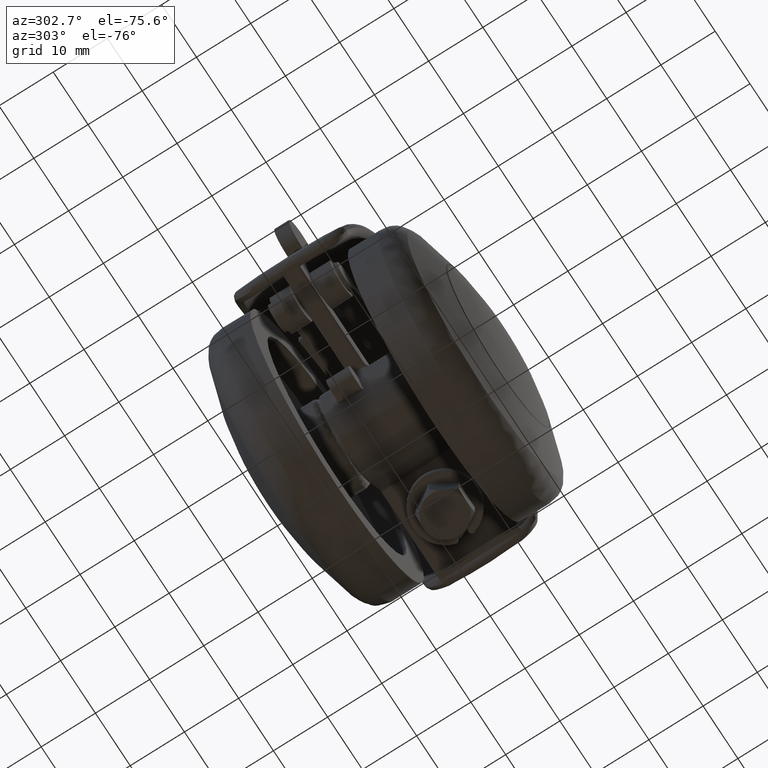
[diagram: clean part render]
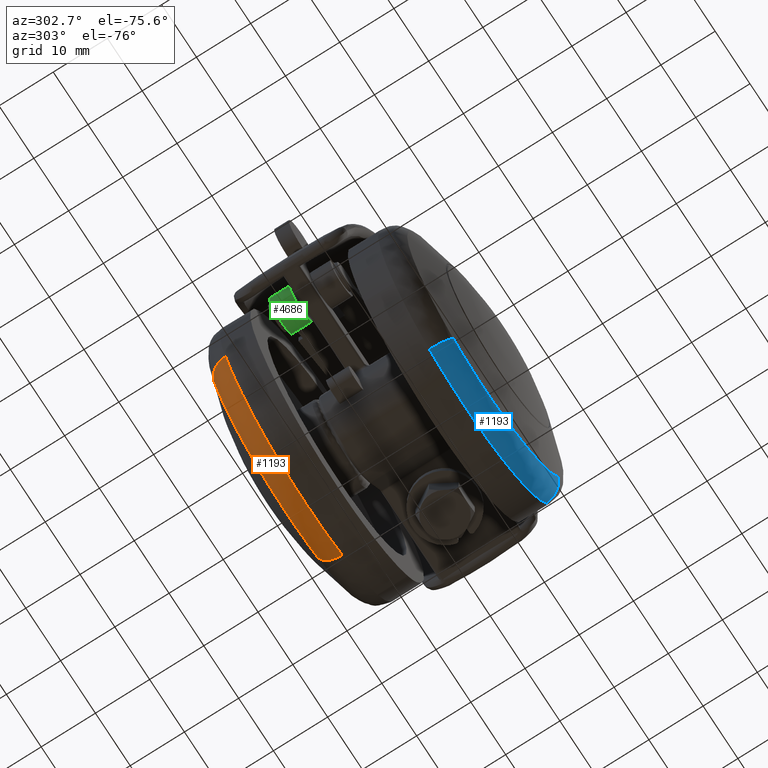
[diagram: same view with three faces highlighted in distinct colors, each labeled with its STEP entity id]
A machine part, auxiliary view with three faces highlighted in distinct colors.
Their STEP definitions:

[orange] entity #1193 — the highlighted face is a freeform B-spline surface patch.
#476=CARTESIAN_POINT('',(-10.231622853727570,-14.593997068428530,-22.810390040047089));
#477=VERTEX_POINT('',#476);
#569=CARTESIAN_POINT('',(23.358223561411961,-14.593997068430790,-8.910296967840019));
#570=VERTEX_POINT('',#569);
#586=CARTESIAN_POINT('',(0.0,-14.593997068399940,-25.0));
#587=VERTEX_POINT('',#586);
#588=CARTESIAN_POINT('',(23.358223561411954,-14.593997068430786,-8.910296967840019));
#589=CARTESIAN_POINT('',(17.220597908324997,-14.593997068399940,-25.000000000000011));
#590=CARTESIAN_POINT('',(0.0,-14.593997068399940,-25.0));
#598=(BOUNDED_CURVE()B_SPLINE_CURVE(2,(#588,#589,#590),.UNSPECIFIED.,.F.,.U.)B_SPLINE_CURVE_WITH_KNOTS((3,3),(0.310525011914154,0.500000000000000),.UNSPECIFIED.)CURVE()GEOMETRIC_REPRESENTATION_ITEM()RATIONAL_B_SPLINE_CURVE((0.892515443905773,0.778016243419585,1.0))REPRESENTATION_ITEM(''));
#599=EDGE_CURVE('',#570,#587,#598,.T.);
#601=CARTESIAN_POINT('',(0.0,-14.593997068399940,-25.0));
#602=CARTESIAN_POINT('',(-5.350104258278274,-14.593997068399945,-25.000000000000011));
#603=CARTESIAN_POINT('',(-10.231622853727574,-14.593997068428527,-22.810390040047093));
#611=(BOUNDED_CURVE()B_SPLINE_CURVE(2,(#601,#602,#603),.UNSPECIFIED.,.F.,.U.)B_SPLINE_CURVE_WITH_KNOTS((3,3),(0.500000000000000,0.569501085436818),.UNSPECIFIED.)CURVE()GEOMETRIC_REPRESENTATION_ITEM()RATIONAL_B_SPLINE_CURVE((1.0,0.918574413501526,0.882422160154840))REPRESENTATION_ITEM(''));
#612=EDGE_CURVE('',#587,#477,#611,.T.);
#1070=CARTESIAN_POINT('',(-9.183185829302595,-18.326483563060339,-20.473003505578621));
#1071=VERTEX_POINT('',#1070);
#1072=CARTESIAN_POINT('',(-9.183185829302595,-18.326483563060343,-20.473003505578617));
#1073=CARTESIAN_POINT('',(-10.231622853711102,-17.339358833673902,-22.810390040011459));
#1074=CARTESIAN_POINT('',(-10.231622853727572,-14.593997068428523,-22.810390040047093));
#1082=(BOUNDED_CURVE()B_SPLINE_CURVE(2,(#1072,#1073,#1074),.UNSPECIFIED.,.F.,.U.)B_SPLINE_CURVE_WITH_KNOTS((3,3),(-1.674349435299890,-0.336518399897634),.UNSPECIFIED.)CURVE()GEOMETRIC_REPRESENTATION_ITEM()RATIONAL_B_SPLINE_CURVE((0.883192897697689,0.727144453720862,0.880678016416272))REPRESENTATION_ITEM(''));
#1083=EDGE_CURVE('',#1071,#477,#1082,.T.);
#1102=CARTESIAN_POINT('',(20.964700385383590,-18.326483563089191,-7.997256546008503));
#1103=VERTEX_POINT('',#1102);
#1119=CARTESIAN_POINT('',(20.964700385383590,-18.326483563089191,-7.997256546008503));
#1120=CARTESIAN_POINT('',(23.358223561375727,-17.339358833793128,-8.910296967816182));
#1121=CARTESIAN_POINT('',(23.358223561411961,-14.593997068430793,-8.910296967840019));
#1129=(BOUNDED_CURVE()B_SPLINE_CURVE(2,(#1119,#1120,#1121),.UNSPECIFIED.,.F.,.U.)B_SPLINE_CURVE_WITH_KNOTS((3,3),(-1.674349435347378,-0.336518399898965),.UNSPECIFIED.)CURVE()GEOMETRIC_REPRESENTATION_ITEM()RATIONAL_B_SPLINE_CURVE((0.903516784238372,0.743877379678044,0.900944030919920))REPRESENTATION_ITEM(''));
#1130=EDGE_CURVE('',#1103,#570,#1129,.T.);
#1136=CARTESIAN_POINT('',(20.767607842402949,-18.401061501416720,-7.922073042101664));
#1137=CARTESIAN_POINT('',(12.845534800301284,-18.401061501416727,-28.689680884504593));
#1138=CARTESIAN_POINT('',(-7.922073042101659,-18.401061501416720,-20.767607842402949));
#1139=CARTESIAN_POINT('',(-8.516432482638061,-18.401061501416716,-20.540881734277086));
#1140=CARTESIAN_POINT('',(-9.096852092142793,-18.401061501416720,-20.280533986902508));
#1141=CARTESIAN_POINT('',(23.514173028038961,-17.453407258791170,-8.969785912097017));
#1142=CARTESIAN_POINT('',(14.544387115941941,-17.453407258791167,-32.483958940135977));
#1143=CARTESIAN_POINT('',(-8.969785912097011,-17.453407258791170,-23.514173028038961));
#1144=CARTESIAN_POINT('',(-9.642750792389377,-17.453407258791156,-23.257461856636734));
#1145=CARTESIAN_POINT('',(-10.299932266073341,-17.453407258791174,-22.962682504788287));
#1146=CARTESIAN_POINT('',(23.352342244603445,-14.369680448133055,-8.908053463344830));
#1147=CARTESIAN_POINT('',(14.444288781258622,-14.369680448133053,-32.260395707948284));
#1148=CARTESIAN_POINT('',(-8.908053463344828,-14.369680448133055,-23.352342244603445));
#1149=CARTESIAN_POINT('',(-9.576386820611802,-14.369680448133055,-23.097397827657577));
#1150=CARTESIAN_POINT('',(-10.229045396866255,-14.369680448133057,-22.804647225593079));
#1158=(BOUNDED_SURFACE()B_SPLINE_SURFACE(2,2,((#1136,#1141,#1146),(#1137,#1142,#1147),(#1138,#1143,#1148),(#1139,#1144,#1149),(#1140,#1145,#1150)),.UNSPECIFIED.,.F.,.F.,.U.)B_SPLINE_SURFACE_WITH_KNOTS((3,2,3),(3,3),(0.0,41.410926843217638,43.067362337244852),(0.0,5.458281137225143),.UNSPECIFIED.)GEOMETRIC_REPRESENTATION_ITEM()RATIONAL_B_SPLINE_SURFACE(((0.920254974047563,0.727267710697979,0.917425179410290),(0.650718532569682,0.514255929972558,0.648717565592301),(0.920254974047563,0.727267710697979,0.917425179410290),(0.909473526670447,0.718747247594717,0.906676885107953),(0.899554594260942,0.710908420889656,0.896788453529772)))REPRESENTATION_ITEM('')SURFACE());
#1159=ORIENTED_EDGE('',*,*,#612,.F.);
#1160=ORIENTED_EDGE('',*,*,#599,.F.);
#1161=ORIENTED_EDGE('',*,*,#1130,.F.);
#1162=CARTESIAN_POINT('',(0.0,-18.326483564039400,-22.438243567644001));
#1163=VERTEX_POINT('',#1162);
#1164=CARTESIAN_POINT('',(0.0,-18.326483564039400,-22.438243567644001));
#1165=CARTESIAN_POINT('',(15.455998809657956,-18.326483564039400,-22.438243567644001));
#1166=CARTESIAN_POINT('',(20.964700385383587,-18.326483563089191,-7.997256546008503));
#1174=(BOUNDED_CURVE()B_SPLINE_CURVE(2,(#1164,#1165,#1166),.UNSPECIFIED.,.F.,.U.)B_SPLINE_CURVE_WITH_KNOTS((3,3),(0.500000000000000,0.689474988083553),.UNSPECIFIED.)CURVE()GEOMETRIC_REPRESENTATION_ITEM()RATIONAL_B_SPLINE_CURVE((1.0,0.778016243422270,0.892515443903003))REPRESENTATION_ITEM(''));
#1175=EDGE_CURVE('',#1163,#1103,#1174,.T.);
#1176=ORIENTED_EDGE('',*,*,#1175,.F.);
#1177=CARTESIAN_POINT('',(-9.183185829302595,-18.326483563060343,-20.473003505578617));
#1178=CARTESIAN_POINT('',(-4.801877699406469,-18.326483564039400,-22.438243567643998));
#1179=CARTESIAN_POINT('',(0.0,-18.326483564039400,-22.438243567644001));
#1187=(BOUNDED_CURVE()B_SPLINE_CURVE(2,(#1177,#1178,#1179),.UNSPECIFIED.,.F.,.U.)B_SPLINE_CURVE_WITH_KNOTS((3,3),(0.430498914549554,0.500000000000000),.UNSPECIFIED.)CURVE()GEOMETRIC_REPRESENTATION_ITEM()RATIONAL_B_SPLINE_CURVE((0.882422160140663,0.918574413485561,1.0))REPRESENTATION_ITEM(''));
#1188=EDGE_CURVE('',#1071,#1163,#1187,.T.);
#1189=ORIENTED_EDGE('',*,*,#1188,.F.);
#1190=ORIENTED_EDGE('',*,*,#1083,.T.);
#1191=EDGE_LOOP('',(#1159,#1160,#1161,#1176,#1189,#1190));
#1192=FACE_OUTER_BOUND('',#1191,.T.);
#1193=ADVANCED_FACE('',(#1192),#1158,.T.);

[blue] entity #1193 — the highlighted face is a freeform B-spline surface patch.
#476=CARTESIAN_POINT('',(-10.231622853727570,-14.593997068428530,-22.810390040047089));
#477=VERTEX_POINT('',#476);
#569=CARTESIAN_POINT('',(23.358223561411961,-14.593997068430790,-8.910296967840019));
#570=VERTEX_POINT('',#569);
#586=CARTESIAN_POINT('',(0.0,-14.593997068399940,-25.0));
#587=VERTEX_POINT('',#586);
#588=CARTESIAN_POINT('',(23.358223561411954,-14.593997068430786,-8.910296967840019));
#589=CARTESIAN_POINT('',(17.220597908324997,-14.593997068399940,-25.000000000000011));
#590=CARTESIAN_POINT('',(0.0,-14.593997068399940,-25.0));
#598=(BOUNDED_CURVE()B_SPLINE_CURVE(2,(#588,#589,#590),.UNSPECIFIED.,.F.,.U.)B_SPLINE_CURVE_WITH_KNOTS((3,3),(0.310525011914154,0.500000000000000),.UNSPECIFIED.)CURVE()GEOMETRIC_REPRESENTATION_ITEM()RATIONAL_B_SPLINE_CURVE((0.892515443905773,0.778016243419585,1.0))REPRESENTATION_ITEM(''));
#599=EDGE_CURVE('',#570,#587,#598,.T.);
#601=CARTESIAN_POINT('',(0.0,-14.593997068399940,-25.0));
#602=CARTESIAN_POINT('',(-5.350104258278274,-14.593997068399945,-25.000000000000011));
#603=CARTESIAN_POINT('',(-10.231622853727574,-14.593997068428527,-22.810390040047093));
#611=(BOUNDED_CURVE()B_SPLINE_CURVE(2,(#601,#602,#603),.UNSPECIFIED.,.F.,.U.)B_SPLINE_CURVE_WITH_KNOTS((3,3),(0.500000000000000,0.569501085436818),.UNSPECIFIED.)CURVE()GEOMETRIC_REPRESENTATION_ITEM()RATIONAL_B_SPLINE_CURVE((1.0,0.918574413501526,0.882422160154840))REPRESENTATION_ITEM(''));
#612=EDGE_CURVE('',#587,#477,#611,.T.);
#1070=CARTESIAN_POINT('',(-9.183185829302595,-18.326483563060339,-20.473003505578621));
#1071=VERTEX_POINT('',#1070);
#1072=CARTESIAN_POINT('',(-9.183185829302595,-18.326483563060343,-20.473003505578617));
#1073=CARTESIAN_POINT('',(-10.231622853711102,-17.339358833673902,-22.810390040011459));
#1074=CARTESIAN_POINT('',(-10.231622853727572,-14.593997068428523,-22.810390040047093));
#1082=(BOUNDED_CURVE()B_SPLINE_CURVE(2,(#1072,#1073,#1074),.UNSPECIFIED.,.F.,.U.)B_SPLINE_CURVE_WITH_KNOTS((3,3),(-1.674349435299890,-0.336518399897634),.UNSPECIFIED.)CURVE()GEOMETRIC_REPRESENTATION_ITEM()RATIONAL_B_SPLINE_CURVE((0.883192897697689,0.727144453720862,0.880678016416272))REPRESENTATION_ITEM(''));
#1083=EDGE_CURVE('',#1071,#477,#1082,.T.);
#1102=CARTESIAN_POINT('',(20.964700385383590,-18.326483563089191,-7.997256546008503));
#1103=VERTEX_POINT('',#1102);
#1119=CARTESIAN_POINT('',(20.964700385383590,-18.326483563089191,-7.997256546008503));
#1120=CARTESIAN_POINT('',(23.358223561375727,-17.339358833793128,-8.910296967816182));
#1121=CARTESIAN_POINT('',(23.358223561411961,-14.593997068430793,-8.910296967840019));
#1129=(BOUNDED_CURVE()B_SPLINE_CURVE(2,(#1119,#1120,#1121),.UNSPECIFIED.,.F.,.U.)B_SPLINE_CURVE_WITH_KNOTS((3,3),(-1.674349435347378,-0.336518399898965),.UNSPECIFIED.)CURVE()GEOMETRIC_REPRESENTATION_ITEM()RATIONAL_B_SPLINE_CURVE((0.903516784238372,0.743877379678044,0.900944030919920))REPRESENTATION_ITEM(''));
#1130=EDGE_CURVE('',#1103,#570,#1129,.T.);
#1136=CARTESIAN_POINT('',(20.767607842402949,-18.401061501416720,-7.922073042101664));
#1137=CARTESIAN_POINT('',(12.845534800301284,-18.401061501416727,-28.689680884504593));
#1138=CARTESIAN_POINT('',(-7.922073042101659,-18.401061501416720,-20.767607842402949));
#1139=CARTESIAN_POINT('',(-8.516432482638061,-18.401061501416716,-20.540881734277086));
#1140=CARTESIAN_POINT('',(-9.096852092142793,-18.401061501416720,-20.280533986902508));
#1141=CARTESIAN_POINT('',(23.514173028038961,-17.453407258791170,-8.969785912097017));
#1142=CARTESIAN_POINT('',(14.544387115941941,-17.453407258791167,-32.483958940135977));
#1143=CARTESIAN_POINT('',(-8.969785912097011,-17.453407258791170,-23.514173028038961));
#1144=CARTESIAN_POINT('',(-9.642750792389377,-17.453407258791156,-23.257461856636734));
#1145=CARTESIAN_POINT('',(-10.299932266073341,-17.453407258791174,-22.962682504788287));
#1146=CARTESIAN_POINT('',(23.352342244603445,-14.369680448133055,-8.908053463344830));
#1147=CARTESIAN_POINT('',(14.444288781258622,-14.369680448133053,-32.260395707948284));
#1148=CARTESIAN_POINT('',(-8.908053463344828,-14.369680448133055,-23.352342244603445));
#1149=CARTESIAN_POINT('',(-9.576386820611802,-14.369680448133055,-23.097397827657577));
#1150=CARTESIAN_POINT('',(-10.229045396866255,-14.369680448133057,-22.804647225593079));
#1158=(BOUNDED_SURFACE()B_SPLINE_SURFACE(2,2,((#1136,#1141,#1146),(#1137,#1142,#1147),(#1138,#1143,#1148),(#1139,#1144,#1149),(#1140,#1145,#1150)),.UNSPECIFIED.,.F.,.F.,.U.)B_SPLINE_SURFACE_WITH_KNOTS((3,2,3),(3,3),(0.0,41.410926843217638,43.067362337244852),(0.0,5.458281137225143),.UNSPECIFIED.)GEOMETRIC_REPRESENTATION_ITEM()RATIONAL_B_SPLINE_SURFACE(((0.920254974047563,0.727267710697979,0.917425179410290),(0.650718532569682,0.514255929972558,0.648717565592301),(0.920254974047563,0.727267710697979,0.917425179410290),(0.909473526670447,0.718747247594717,0.906676885107953),(0.899554594260942,0.710908420889656,0.896788453529772)))REPRESENTATION_ITEM('')SURFACE());
#1159=ORIENTED_EDGE('',*,*,#612,.F.);
#1160=ORIENTED_EDGE('',*,*,#599,.F.);
#1161=ORIENTED_EDGE('',*,*,#1130,.F.);
#1162=CARTESIAN_POINT('',(0.0,-18.326483564039400,-22.438243567644001));
#1163=VERTEX_POINT('',#1162);
#1164=CARTESIAN_POINT('',(0.0,-18.326483564039400,-22.438243567644001));
#1165=CARTESIAN_POINT('',(15.455998809657956,-18.326483564039400,-22.438243567644001));
#1166=CARTESIAN_POINT('',(20.964700385383587,-18.326483563089191,-7.997256546008503));
#1174=(BOUNDED_CURVE()B_SPLINE_CURVE(2,(#1164,#1165,#1166),.UNSPECIFIED.,.F.,.U.)B_SPLINE_CURVE_WITH_KNOTS((3,3),(0.500000000000000,0.689474988083553),.UNSPECIFIED.)CURVE()GEOMETRIC_REPRESENTATION_ITEM()RATIONAL_B_SPLINE_CURVE((1.0,0.778016243422270,0.892515443903003))REPRESENTATION_ITEM(''));
#1175=EDGE_CURVE('',#1163,#1103,#1174,.T.);
#1176=ORIENTED_EDGE('',*,*,#1175,.F.);
#1177=CARTESIAN_POINT('',(-9.183185829302595,-18.326483563060343,-20.473003505578617));
#1178=CARTESIAN_POINT('',(-4.801877699406469,-18.326483564039400,-22.438243567643998));
#1179=CARTESIAN_POINT('',(0.0,-18.326483564039400,-22.438243567644001));
#1187=(BOUNDED_CURVE()B_SPLINE_CURVE(2,(#1177,#1178,#1179),.UNSPECIFIED.,.F.,.U.)B_SPLINE_CURVE_WITH_KNOTS((3,3),(0.430498914549554,0.500000000000000),.UNSPECIFIED.)CURVE()GEOMETRIC_REPRESENTATION_ITEM()RATIONAL_B_SPLINE_CURVE((0.882422160140663,0.918574413485561,1.0))REPRESENTATION_ITEM(''));
#1188=EDGE_CURVE('',#1071,#1163,#1187,.T.);
#1189=ORIENTED_EDGE('',*,*,#1188,.F.);
#1190=ORIENTED_EDGE('',*,*,#1083,.T.);
#1191=EDGE_LOOP('',(#1159,#1160,#1161,#1176,#1189,#1190));
#1192=FACE_OUTER_BOUND('',#1191,.T.);
#1193=ADVANCED_FACE('',(#1192),#1158,.T.);

[green] entity #4686 — the highlighted face is a freeform B-spline surface patch.
#4495=CARTESIAN_POINT('',(-20.886645920919801,1.900000000000000,6.869426943966571));
#4496=VERTEX_POINT('',#4495);
#4510=CARTESIAN_POINT('',(-23.271689609477150,1.900000000000000,6.374899015954280));
#4511=VERTEX_POINT('',#4510);
#4517=CARTESIAN_POINT('',(-23.271689609477150,1.900000000000000,6.374899015954282));
#4518=CARTESIAN_POINT('',(-25.550406773934593,1.899999999999999,4.873989091057305));
#4519=CARTESIAN_POINT('',(-24.504334299940851,1.900000000000000,2.353867090558159));
#4520=CARTESIAN_POINT('',(-23.458261825947119,1.899999999999999,-0.166254909940987));
#4521=CARTESIAN_POINT('',(-20.786485636109479,1.900000000000000,0.387725694109159));
#4522=CARTESIAN_POINT('',(-18.114709446271821,1.899999999999999,0.941706298159304));
#4523=CARTESIAN_POINT('',(-18.156868930181499,1.900000000000000,3.669985077199975));
#4524=CARTESIAN_POINT('',(-18.199028414091167,1.899999999999999,6.398263856240645));
#4525=CARTESIAN_POINT('',(-20.886645920919801,1.900000000000000,6.869426943966576));
#4533=(BOUNDED_CURVE()B_SPLINE_CURVE(2,(#4517,#4518,#4519,#4520,#4521,#4522,#4523,#4524,#4525),.UNSPECIFIED.,.F.,.U.)B_SPLINE_CURVE_WITH_KNOTS((3,2,2,2,3),(0.0,0.250000000000000,0.500000000000000,0.750000000000000,1.0),.UNSPECIFIED.)CURVE()GEOMETRIC_REPRESENTATION_ITEM()RATIONAL_B_SPLINE_CURVE((1.0,0.770672987149878,1.0,0.770672987149878,1.0,0.770672987149878,1.0,0.770672987149878,1.0))REPRESENTATION_ITEM(''));
#4534=EDGE_CURVE('',#4511,#4496,#4533,.T.);
#4624=CARTESIAN_POINT('',(-21.028970034769060,5.692500000000001,6.891188850228657));
#4625=CARTESIAN_POINT('',(-21.028970034769060,1.805187499999999,6.891188850228657));
#4626=CARTESIAN_POINT('',(-18.258855156103802,5.692500000000001,6.529279182613390));
#4627=CARTESIAN_POINT('',(-18.258855156103802,1.805187500000000,6.529279182613390));
#4628=CARTESIAN_POINT('',(-18.158600621647121,5.692500000000001,3.737422439004060));
#4629=CARTESIAN_POINT('',(-18.158600621647121,1.805187499999999,3.737422439004060));
#4630=CARTESIAN_POINT('',(-18.058346087190444,5.692500000000001,0.945565695394730));
#4631=CARTESIAN_POINT('',(-18.058346087190444,1.805187500000000,0.945565695394730));
#4632=CARTESIAN_POINT('',(-20.795367424078190,5.692500000000001,0.385896820132581));
#4633=CARTESIAN_POINT('',(-20.795367424078190,1.805187499999999,0.385896820132581));
#4634=CARTESIAN_POINT('',(-23.532388760965947,5.692500000000001,-0.173772055129569));
#4635=CARTESIAN_POINT('',(-23.532388760965947,1.805187500000000,-0.173772055129569));
#4636=CARTESIAN_POINT('',(-24.536120933108450,5.692500000000001,2.433340672606247));
#4637=CARTESIAN_POINT('',(-24.536120933108450,1.805187499999999,2.433340672606247));
#4638=CARTESIAN_POINT('',(-25.539853105250970,5.692500000000001,5.040453400342063));
#4639=CARTESIAN_POINT('',(-25.539853105250970,1.805187500000000,5.040453400342063));
#4640=CARTESIAN_POINT('',(-23.134158952238138,5.692500000000001,6.460717703447610));
#4641=CARTESIAN_POINT('',(-23.134158952238138,1.805187499999999,6.460717703447610));
#4649=(BOUNDED_SURFACE()B_SPLINE_SURFACE(1,2,((#4624,#4626,#4628,#4630,#4632,#4634,#4636,#4638,#4640),(#4625,#4627,#4629,#4631,#4633,#4635,#4637,#4639,#4641)),.UNSPECIFIED.,.F.,.F.,.U.)B_SPLINE_SURFACE_WITH_KNOTS((2,2),(3,2,2,2,3),(0.0,3.887312500000002),(0.0,4.837045980862092,9.674091961724184,14.511137942586281,19.348183923448371),.UNSPECIFIED.)GEOMETRIC_REPRESENTATION_ITEM()RATIONAL_B_SPLINE_SURFACE(((1.0,0.763232469782529,1.0,0.763232469782529,1.0,0.763232469782529,1.0,0.763232469782529,1.0),(1.0,0.763232469782529,1.0,0.763232469782529,1.0,0.763232469782529,1.0,0.763232469782529,1.0)))REPRESENTATION_ITEM('')SURFACE());
#4650=ORIENTED_EDGE('',*,*,#4534,.F.);
#4651=CARTESIAN_POINT('',(-23.271689609477150,5.600000000000000,6.374899015954280));
#4652=VERTEX_POINT('',#4651);
#4653=CARTESIAN_POINT('',(-23.271689609477150,1.900000000000000,6.374899015954280));
#4654=CARTESIAN_POINT('',(-23.271689609477150,5.600000000000000,6.374899015954280));
#4655=QUASI_UNIFORM_CURVE('',1,(#4653,#4654),.UNSPECIFIED.,.F.,.U.);
#4656=EDGE_CURVE('',#4511,#4652,#4655,.T.);
#4657=ORIENTED_EDGE('',*,*,#4656,.T.);
#4658=CARTESIAN_POINT('',(-20.886645920919801,5.600000000000000,6.869426943966571));
#4659=VERTEX_POINT('',#4658);
#4660=CARTESIAN_POINT('',(-23.271689609477150,5.600000000000000,6.374899015954282));
#4661=CARTESIAN_POINT('',(-25.550406773934590,5.600000000000000,4.873989091057306));
#4662=CARTESIAN_POINT('',(-24.504334299940851,5.600000000000000,2.353867090558160));
#4663=CARTESIAN_POINT('',(-23.458261825947130,5.600000000000000,-0.166254909940988));
#4664=CARTESIAN_POINT('',(-20.786485636109472,5.600000000000000,0.387725694109159));
#4665=CARTESIAN_POINT('',(-18.114709446271817,5.600000000000000,0.941706298159305));
#4666=CARTESIAN_POINT('',(-18.156868930181499,5.600000000000000,3.669985077199978));
#4667=CARTESIAN_POINT('',(-18.199028414091167,5.600000000000000,6.398263856240646));
#4668=CARTESIAN_POINT('',(-20.886645920919801,5.600000000000000,6.869426943966577));
#4676=(BOUNDED_CURVE()B_SPLINE_CURVE(2,(#4660,#4661,#4662,#4663,#4664,#4665,#4666,#4667,#4668),.UNSPECIFIED.,.F.,.U.)B_SPLINE_CURVE_WITH_KNOTS((3,2,2,2,3),(0.0,0.250000000000000,0.500000000000000,0.750000000000000,1.0),.UNSPECIFIED.)CURVE()GEOMETRIC_REPRESENTATION_ITEM()RATIONAL_B_SPLINE_CURVE((1.0,0.770672987149878,1.0,0.770672987149878,1.0,0.770672987149878,1.0,0.770672987149878,1.0))REPRESENTATION_ITEM(''));
#4677=EDGE_CURVE('',#4652,#4659,#4676,.T.);
#4678=ORIENTED_EDGE('',*,*,#4677,.T.);
#4679=CARTESIAN_POINT('',(-20.886645920919801,5.600000000000000,6.869426943966571));
#4680=CARTESIAN_POINT('',(-20.886645920919801,1.900000000000000,6.869426943966571));
#4681=QUASI_UNIFORM_CURVE('',1,(#4679,#4680),.UNSPECIFIED.,.F.,.U.);
#4682=EDGE_CURVE('',#4659,#4496,#4681,.T.);
#4683=ORIENTED_EDGE('',*,*,#4682,.T.);
#4684=EDGE_LOOP('',(#4650,#4657,#4678,#4683));
#4685=FACE_OUTER_BOUND('',#4684,.T.);
#4686=ADVANCED_FACE('',(#4685),#4649,.T.);